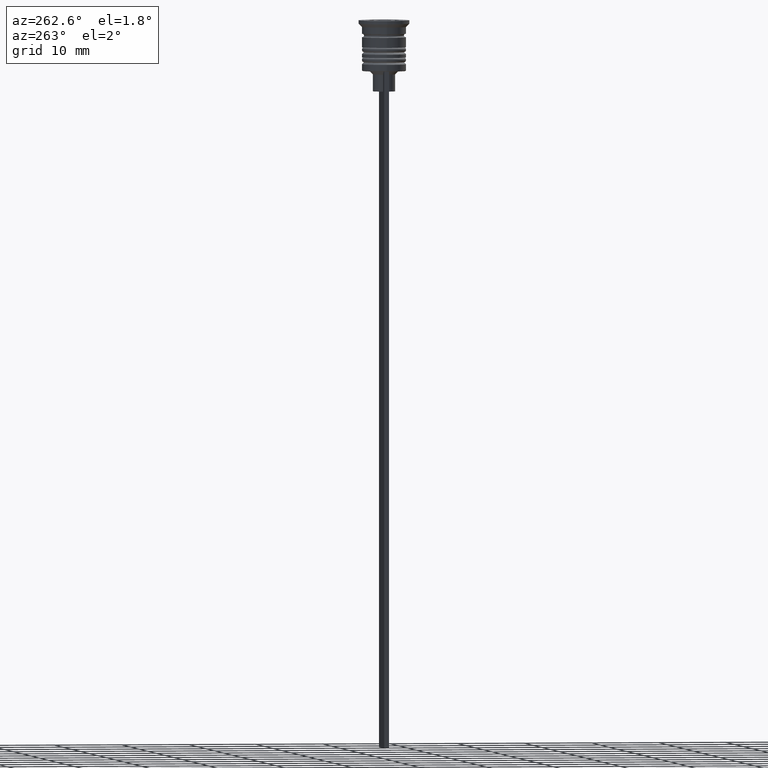
[diagram: clean part render]
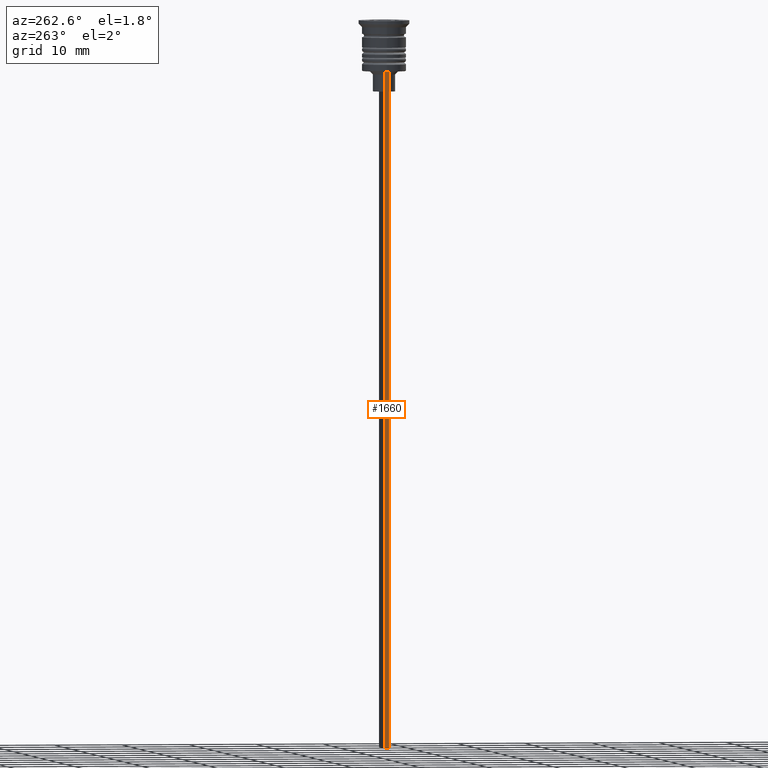
[diagram: same view with one face highlighted and labeled with its STEP entity id]
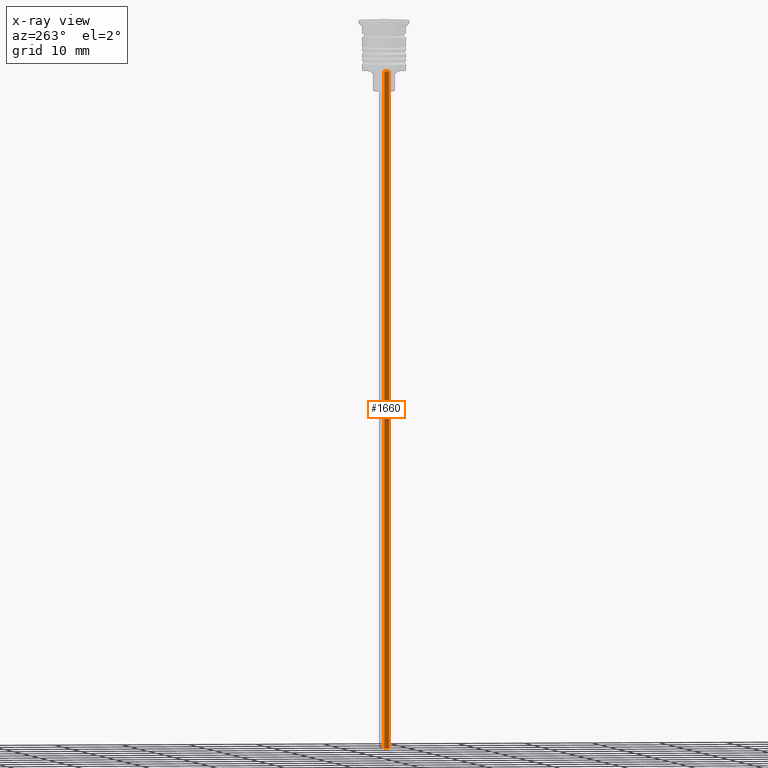
[diagram: x-ray of the same camera — body ghosted, the highlighted face saturated]
A machine part, auxiliary view. The second image highlights one B-rep face of the part: STEP entity #1660.
The next image is the same camera in x-ray: the body ghosted, the highlighted face saturated — about 0% of this face is hidden behind the body in this view.
In plain terms, the highlighted planar face has unit normal (-1, 0, 0).
Its self-contained STEP definition (entity closure, byte-faithful):
#55 = CARTESIAN_POINT ( 'NONE',  ( -3.000000000000004441, -0.3500000000000000333, -107.5000000000000000 ) ) ;
#148 = VERTEX_POINT ( 'NONE', #2060 ) ;
#213 = DIRECTION ( 'NONE',  ( 0.000000000000000000, 1.000000000000000000, 0.000000000000000000 ) ) ;
#240 = EDGE_CURVE ( 'NONE', #1633, #662, #942, .T. ) ;
#295 = DIRECTION ( 'NONE',  ( -1.000000000000000000, 0.000000000000000000, 0.000000000000000000 ) ) ;
#362 = LINE ( 'NONE', #55, #1445 ) ;
#420 = CARTESIAN_POINT ( 'NONE',  ( -3.000000000000004441, 0.3499999999999999223, -7.500000000000000000 ) ) ;
#431 = VECTOR ( 'NONE', #1282, 1000.000000000000000 ) ;
#446 = LINE ( 'NONE', #840, #548 ) ;
#451 = EDGE_CURVE ( 'NONE', #809, #148, #446, .T. ) ;
#548 = VECTOR ( 'NONE', #2011, 1000.000000000000000 ) ;
#566 = CARTESIAN_POINT ( 'NONE',  ( -3.000000000000004441, 0.3500000000000000333, -107.5000000000000000 ) ) ;
#636 = ORIENTED_EDGE ( 'NONE', *, *, #879, .F. ) ;
#644 = DIRECTION ( 'NONE',  ( 0.000000000000000000, 0.000000000000000000, 1.000000000000000000 ) ) ;
#649 = CARTESIAN_POINT ( 'NONE',  ( -3.000000000000004441, -0.3500000000000000333, -7.500000000000000000 ) ) ;
#662 = VERTEX_POINT ( 'NONE', #566 ) ;
#787 = DIRECTION ( 'NONE',  ( 0.000000000000000000, -1.000000000000000000, 0.000000000000000000 ) ) ;
#798 = CARTESIAN_POINT ( 'NONE',  ( -3.000000000000004441, -0.3500000000000000333, -7.500000000000000000 ) ) ;
#809 = VERTEX_POINT ( 'NONE', #798 ) ;
#840 = CARTESIAN_POINT ( 'NONE',  ( -3.000000000000004441, -0.3500000000000000333, -1.459304675784417915 ) ) ;
#879 = EDGE_CURVE ( 'NONE', #1633, #809, #2159, .T. ) ;
#942 = LINE ( 'NONE', #1915, #431 ) ;
#1001 = FACE_OUTER_BOUND ( 'NONE', #1484, .T. ) ;
#1036 = ORIENTED_EDGE ( 'NONE', *, *, #1534, .F. ) ;
#1074 = ORIENTED_EDGE ( 'NONE', *, *, #240, .T. ) ;
#1282 = DIRECTION ( 'NONE',  ( 0.000000000000000000, 0.000000000000000000, -1.000000000000000000 ) ) ;
#1306 = ORIENTED_EDGE ( 'NONE', *, *, #451, .F. ) ;
#1335 = PLANE ( 'NONE',  #1962 ) ;
#1445 = VECTOR ( 'NONE', #213, 1000.000000000000000 ) ;
#1484 = EDGE_LOOP ( 'NONE', ( #636, #1074, #1036, #1306 ) ) ;
#1534 = EDGE_CURVE ( 'NONE', #148, #662, #362, .T. ) ;
#1580 = VECTOR ( 'NONE', #787, 1000.000000000000000 ) ;
#1633 = VERTEX_POINT ( 'NONE', #420 ) ;
#1660 = ADVANCED_FACE ( 'NONE', ( #1001 ), #1335, .T. ) ;
#1915 = CARTESIAN_POINT ( 'NONE',  ( -3.000000000000004441, 0.3500000000000000333, -1.459304675784417915 ) ) ;
#1962 = AXIS2_PLACEMENT_3D ( 'NONE', #2152, #295, #644 ) ;
#2011 = DIRECTION ( 'NONE',  ( 0.000000000000000000, 0.000000000000000000, -1.000000000000000000 ) ) ;
#2060 = CARTESIAN_POINT ( 'NONE',  ( -3.000000000000004441, -0.3500000000000000333, -107.5000000000000000 ) ) ;
#2152 = CARTESIAN_POINT ( 'NONE',  ( -3.000000000000004441, -0.3500000000000000333, -1.459304675784417915 ) ) ;
#2159 = LINE ( 'NONE', #649, #1580 ) ;